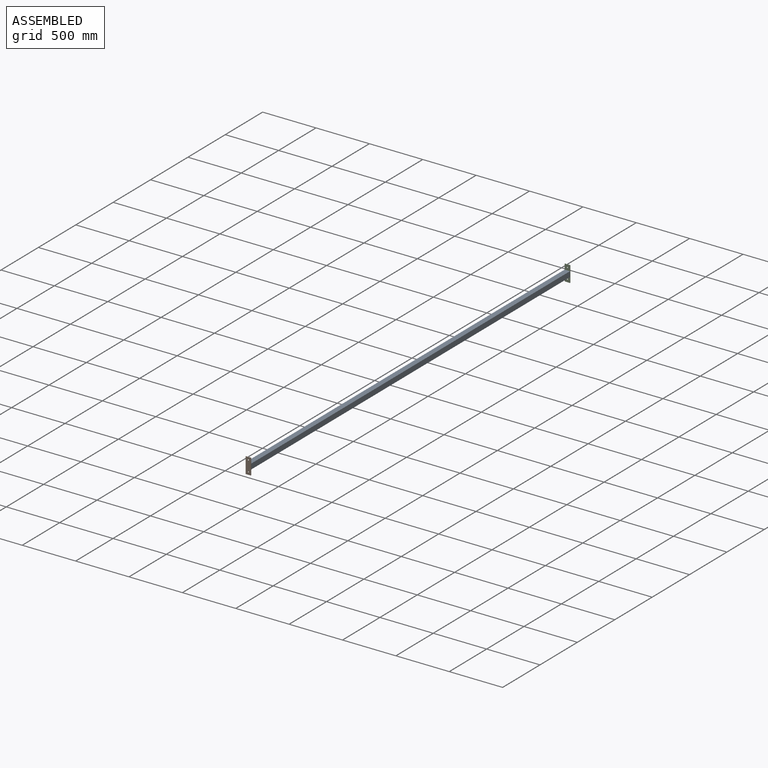
[diagram: assembled view]
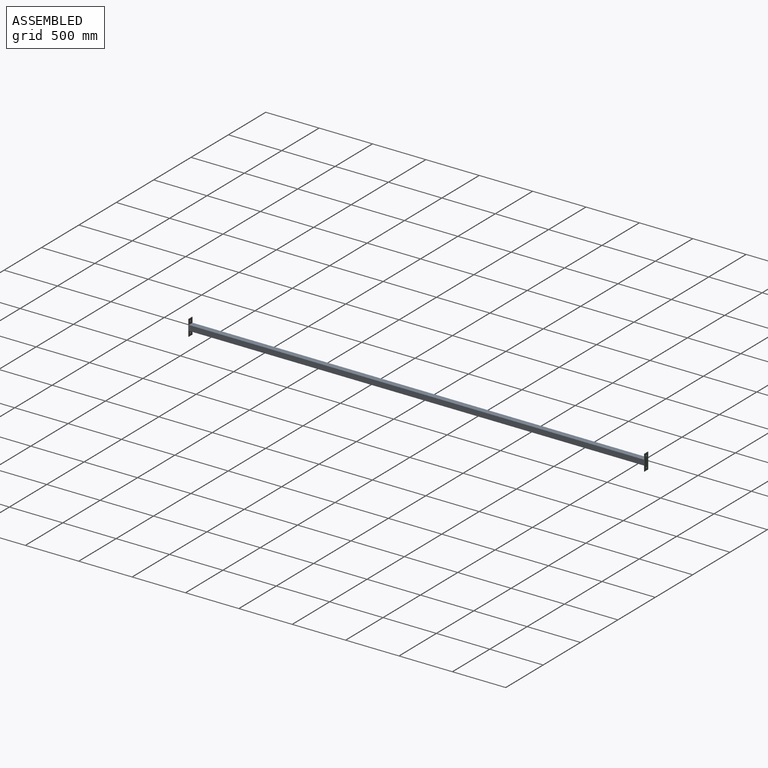
[diagram: assembled view, second angle]
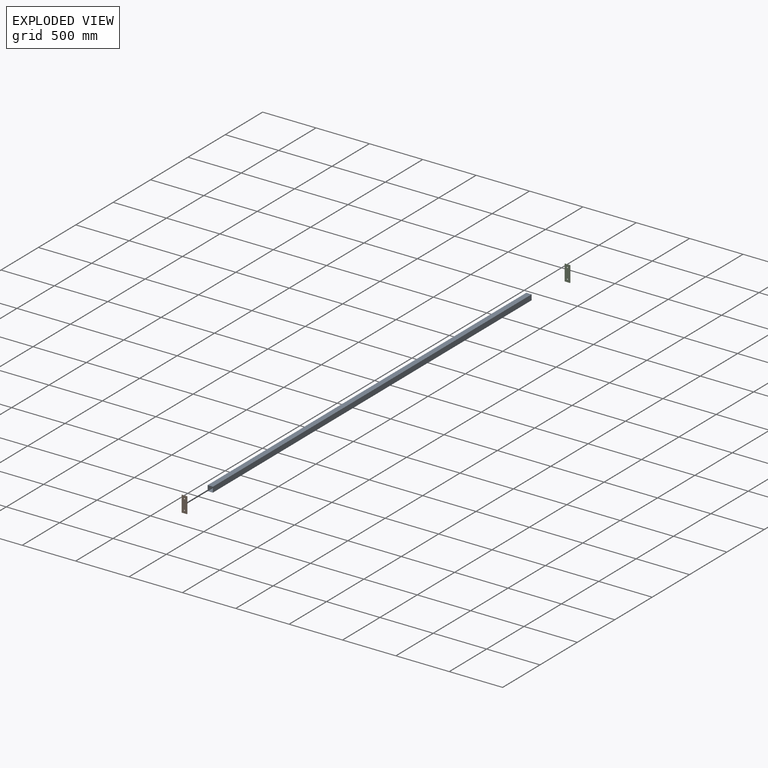
[diagram: exploded view]
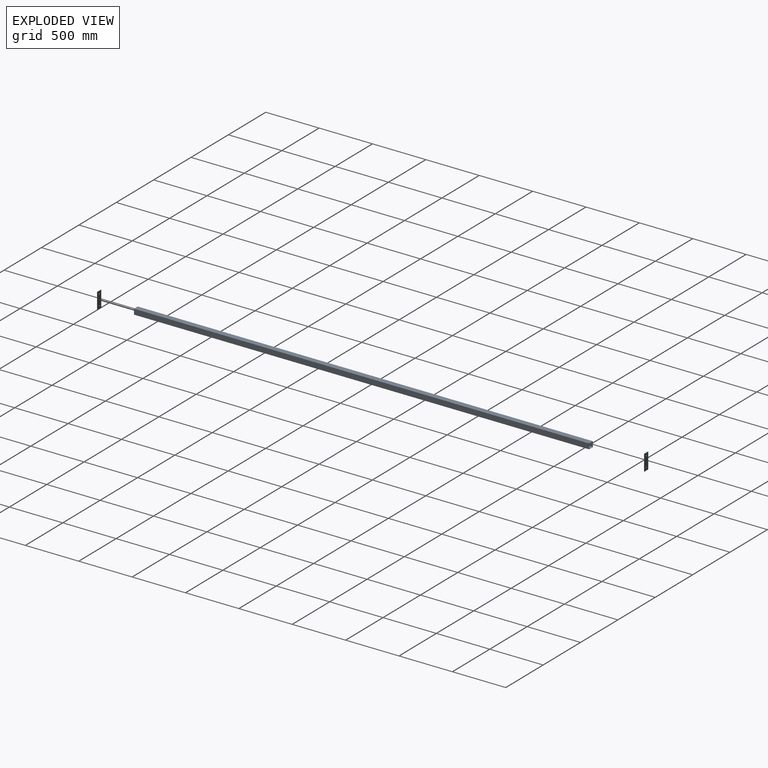
[diagram: exploded view, second angle]
ASSEMBLY  parts=3 mates=2
PART A: 10 faces, bbox 50x4263.8x50 mm
  f0: plane 4263.8x48mm, normal (-1,0,0), area 204662.4mm2, adj f1,f7,f8,f9
  f1: plane 4263.8x48mm, normal (0,0,1), area 204662.4mm2, adj f0,f2,f8,f9
  f2: plane 4263.8x48mm, normal (1,0,0), area 204662.4mm2, adj f1,f7,f8,f9
  f3: plane 4263.8x50mm, normal (0,0,-1), area 213190mm2, adj f4,f6,f8,f9
  f4: plane 4263.8x50mm, normal (1,0,0), area 213190mm2, adj f3,f5,f8,f9
  f5: plane 4263.8x50mm, normal (0,0,1), area 213190mm2, adj f4,f6,f8,f9
  f6: plane 4263.8x50mm, normal (-1,0,0), area 213190mm2, adj f3,f5,f8,f9
  f7: plane 4263.8x48mm, normal (0,0,-1), area 204662.4mm2, adj f0,f2,f8,f9
  f8: plane 50x50mm, normal (0,-1,0), area 196mm2, adj f0,f1,f2,f3,f4,f5,f6,f7
  f9: plane 50x50mm, normal (0,1,0), area 196mm2, adj f0,f1,f2,f3,f4,f5,f6,f7
PART B: 8 faces, bbox 50x5x150 mm
  f0: plane 50x5mm, normal (0,0,-1), area 250mm2, adj f1,f5,f6,f7
  f1: plane 150x5mm, normal (1,0,0), area 750mm2, adj f0,f2,f6,f7
  f2: plane 50x5mm, normal (0,0,1), area 250mm2, adj f1,f5,f6,f7
  f3: cylinder r=5.5mm len=11mm, axis (0,1,0), area 172.8mm2, adj f6,f7
  f4: cylinder r=5.5mm len=11mm, axis (0,1,0), area 172.8mm2, adj f6,f7
  f5: plane 150x5mm, normal (-1,0,0), area 750mm2, adj f0,f2,f6,f7
  f6: plane 150x50mm, normal (0,-1,0), area 7309.9mm2, adj f0,f1,f2,f3,f4,f5
  f7: plane 150x50mm, normal (0,1,0), area 7309.9mm2, adj f0,f1,f2,f3,f4,f5
PART C: same geometry as B
PLACE A t=(-733.71,-433.9,-15.44)mm
PLACE B t=(-733.71,-2568.3,-15.44)mm
PLACE C t=(-733.71,1700.5,-15.44)mm
MATE fastened C.f6 <-> A.f9  axis (0,-1,0) through (-733.71,1698,-15.44)mm
MATE fastened B.f7 <-> A.f8  axis (0,1,0) through (-733.71,-2565.8,-15.44)mm
